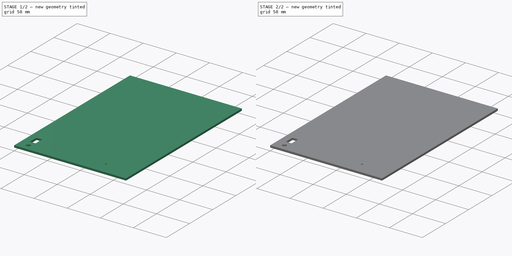
[diagram: build sequence overview — one tinted view per stage of 2, left to right]
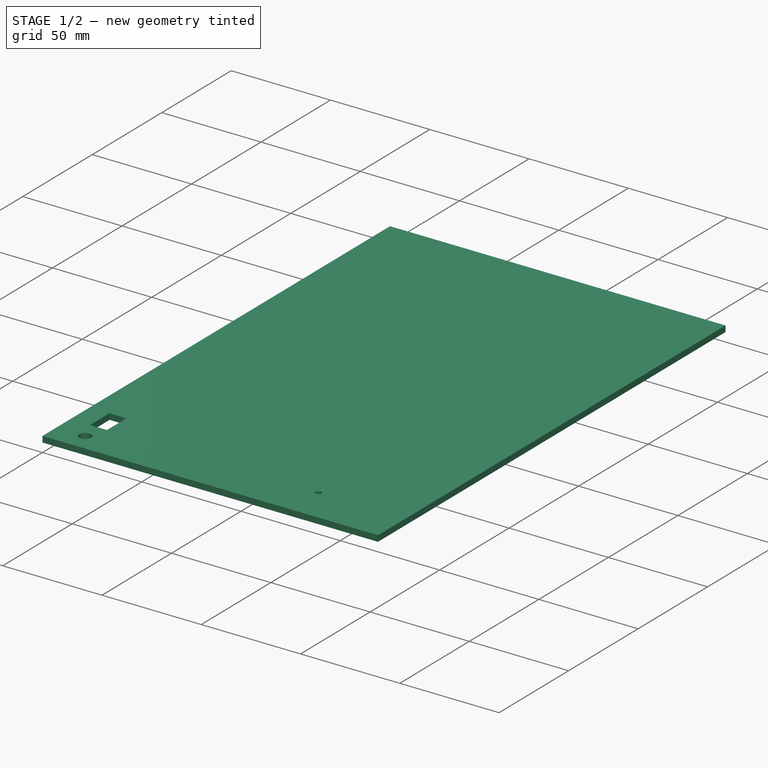
[diagram: stage 1 of 2 — iso view after this stage's code; geometry added in this stage tinted green]
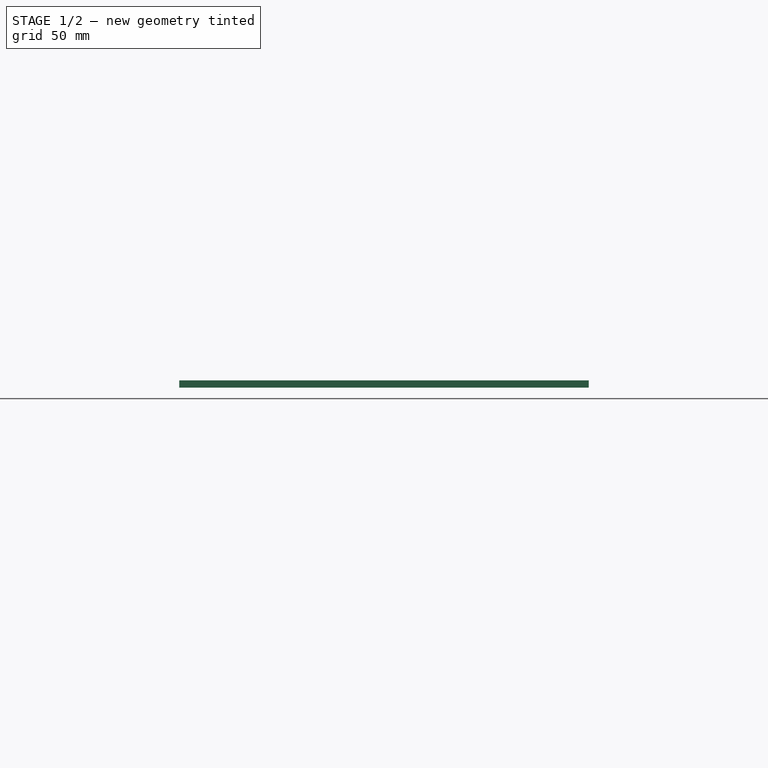
[diagram: stage 1 of 2 — front view after this stage's code; geometry added in this stage tinted green]
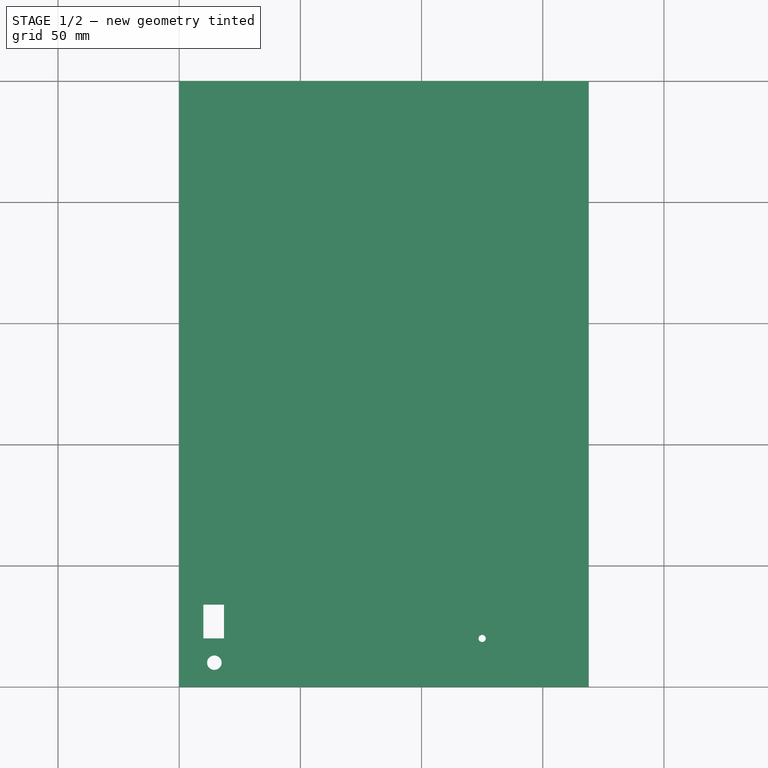
[diagram: stage 1 of 2 — top view after this stage's code; geometry added in this stage tinted green]
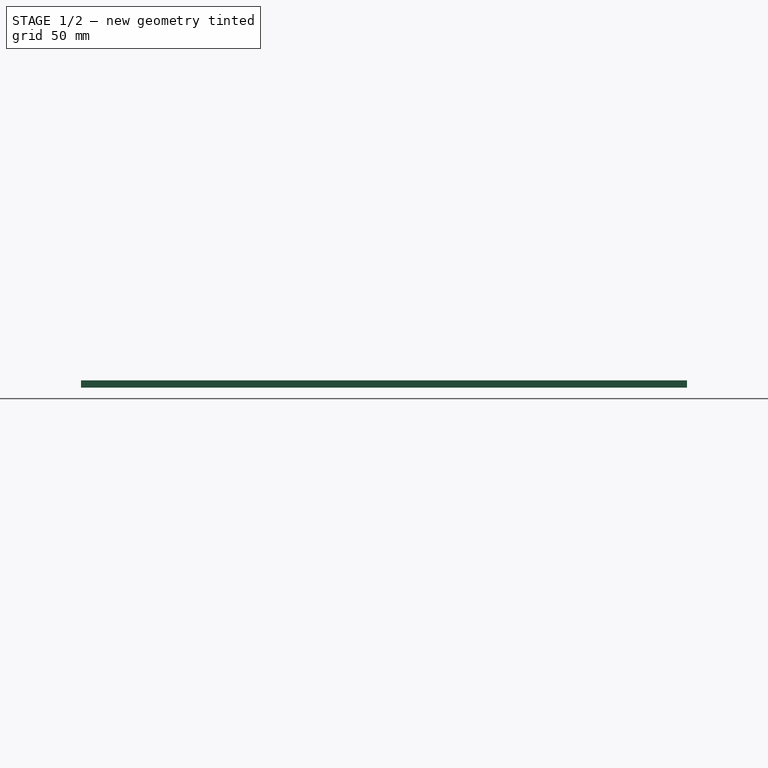
[diagram: stage 1 of 2 — right view after this stage's code; geometry added in this stage tinted green]
FCSTD DOCUMENT  (FreeCAD 0.17R13528 (Git))
Label: PlasticBack
License: All rights reserved
LicenseURL: http://en.wikipedia.org/wiki/All_rights_reserved
objects: Sketcher::SketchObject×2, PartDesign::Pad×1, PartDesign::Pocket×1, PartDesign::Body×1
note: 7 computed .brp shape members not serialized (recipe doc carries the construction recipe); baked Part::Feature solids carry a one-line shape summary decoded from their .brp

FEATURE [Sketcher::SketchObject] Sketch
  MapMode = 5
  Support = -> [XY_Plane]
  sketch-geometry (13):
    g0: LineSegment StartX=0 StartY=0 StartZ=0 EndX=169 EndY=0 EndZ=0
    g1: LineSegment StartX=169 StartY=0 StartZ=0 EndX=169 EndY=250 EndZ=0
    g2: LineSegment StartX=169 StartY=250 StartZ=0 EndX=0 EndY=250 EndZ=0
    g3: LineSegment StartX=0 StartY=250 StartZ=0 EndX=0 EndY=0 EndZ=0
    g4: LineSegment StartX=10 StartY=34 StartZ=0 EndX=18.5 EndY=34 EndZ=0
    g5: LineSegment StartX=18.5 StartY=34 StartZ=0 EndX=18.5 EndY=20 EndZ=0
    g6: LineSegment StartX=18.5 StartY=20 StartZ=0 EndX=10 EndY=20 EndZ=0
    g7: LineSegment StartX=10 StartY=20 StartZ=0 EndX=10 EndY=34 EndZ=0
    g8: Circle CenterX=14.5 CenterY=10 CenterZ=0 NormalX=0 NormalY=0 NormalZ=1 AngleXU=0 Radius=3
    g9: Circle CenterX=125 CenterY=20 CenterZ=0 NormalX=0 NormalY=0 NormalZ=1 AngleXU=0 Radius=1.5
    g10: LineSegment [constr] StartX=10 StartY=20 StartZ=0 EndX=10 EndY=0 EndZ=0
    g11: LineSegment [constr] StartX=14.5 StartY=10 StartZ=0 EndX=14.5 EndY=0 EndZ=0
    g12: LineSegment [constr] StartX=125 StartY=20 StartZ=0 EndX=125 EndY=0 EndZ=0
  constraints (38):
    c: Coincident(g0,g1)
    c: Coincident(g1,g2)
    c: Coincident(g2,g3)
    c: Coincident(g3,g0)
    c: Horizontal(g0)
    c: Horizontal(g2)
    c: Vertical(g1)
    c: Vertical(g3)
    c: Coincident(g0,g-1)
    c: DistanceX(g0,g0) = 169
    c: DistanceY(g3,g3) = 250
    c: Coincident(g4,g5)
    c: Coincident(g5,g6)
    c: Coincident(g6,g7)
    c: Coincident(g7,g4)
    c: Horizontal(g4)
    c: Horizontal(g6)
    c: Vertical(g5)
    c: Vertical(g7)
    c: DistanceX(g4,g4) = 8.5
    c: DistanceY(g5,g5) = 14
    c: Radius(g8) = 3
    c: Radius(g9) = 1.5
    c: Coincident(g10,g6)
    c: PointOnObject(g10,g0)
    c: Vertical(g10)
    c: Coincident(g11,g8)
    c: PointOnObject(g11,g0)
    c: Vertical(g11)
    c: Coincident(g12,g9)
    c: PointOnObject(g12,g0)
    c: Vertical(g12)
    c: DistanceY(g10,g10) = 20
    c: DistanceY(g11,g11) = 10
    c: Distance(g-1,g10) = 10
    c: Distance(g-1,g11) = 14.5
    c: DistanceY(g12,g12) = 20
    c: Distance(g-1,g12) = 125
FEATURE [PartDesign::Pad] Pad
  Length = 3
  Length2 = 100
  Profile = -> Sketch
  Type = 0
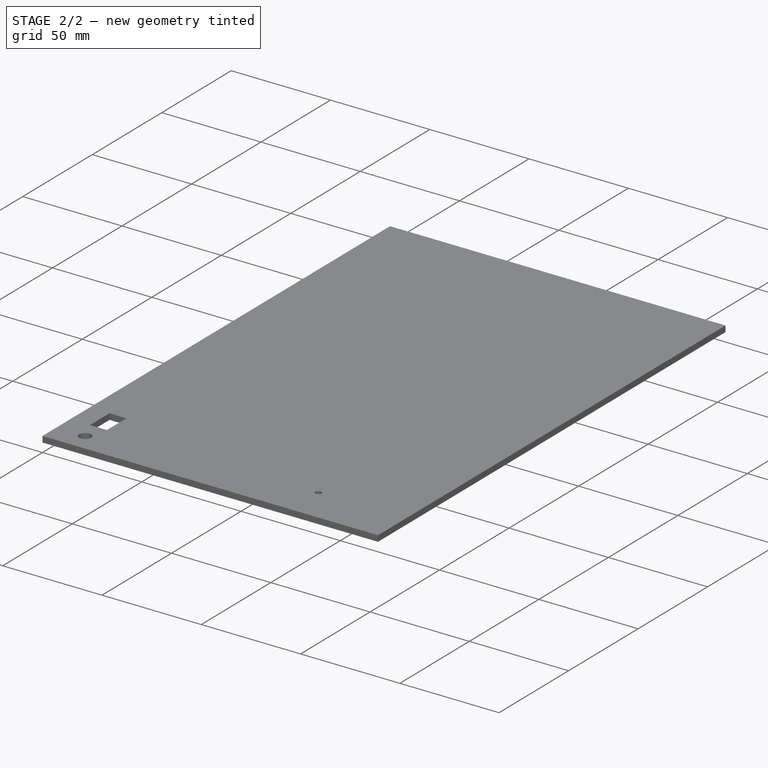
[diagram: stage 2 of 2 — iso view after this stage's code; geometry added in this stage tinted green]
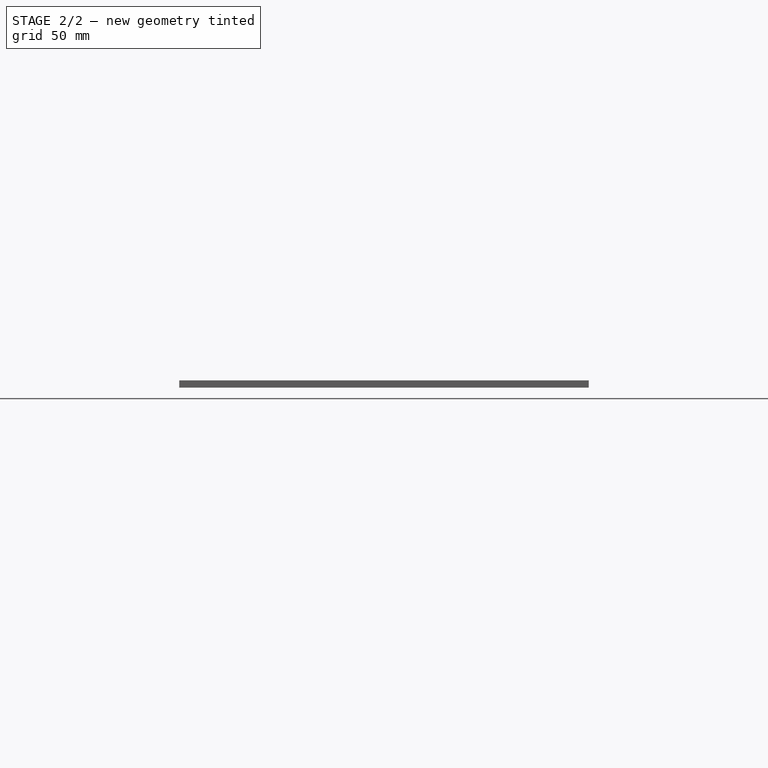
[diagram: stage 2 of 2 — front view after this stage's code; geometry added in this stage tinted green]
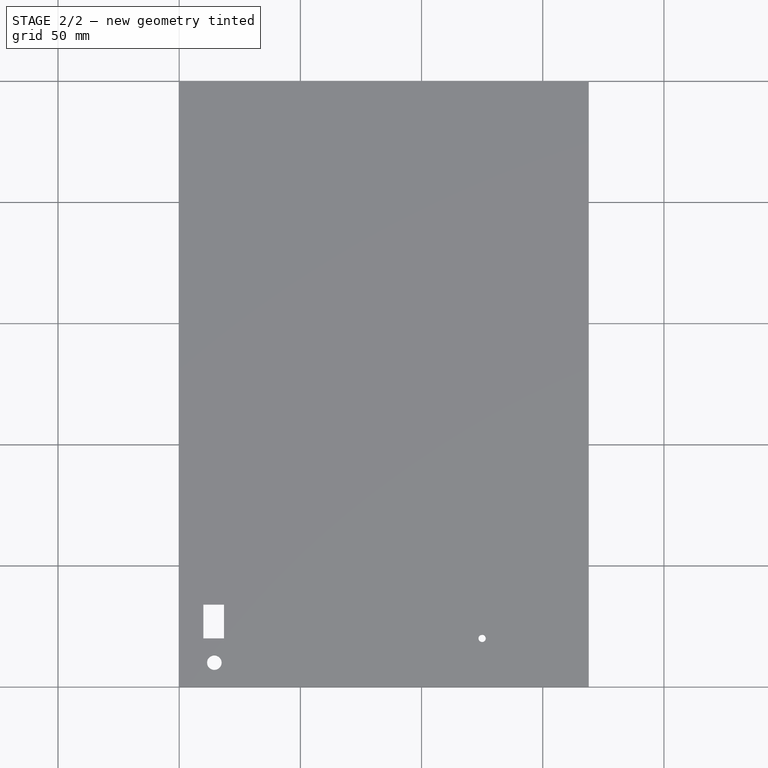
[diagram: stage 2 of 2 — top view after this stage's code; geometry added in this stage tinted green]
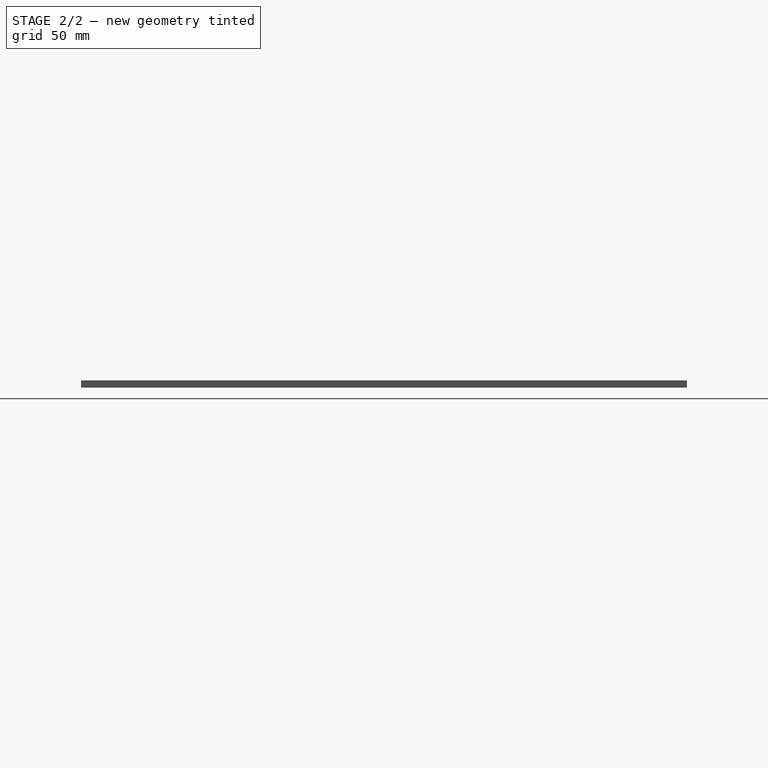
[diagram: stage 2 of 2 — right view after this stage's code; geometry added in this stage tinted green]
FEATURE [Sketcher::SketchObject] Sketch001
  ExternalGeometry = -> [Pad]
  MapMode = 5
  Support = -> [XY_Plane]
  sketch-geometry (5):
    g0: LineSegment StartX=122 StartY=23 StartZ=0 EndX=128 EndY=23 EndZ=0
    g1: LineSegment StartX=128 StartY=23 StartZ=0 EndX=128 EndY=17 EndZ=0
    g2: LineSegment StartX=128 StartY=17 StartZ=0 EndX=122 EndY=17 EndZ=0
    g3: LineSegment StartX=122 StartY=17 StartZ=0 EndX=122 EndY=23 EndZ=0
    g4: LineSegment [constr] StartX=125 StartY=20 StartZ=0 EndX=125 EndY=23 EndZ=0
  constraints (15):
    c: Coincident(g0,g1)
    c: Coincident(g1,g2)
    c: Coincident(g2,g3)
    c: Coincident(g3,g0)
    c: Horizontal(g0)
    c: Horizontal(g2)
    c: Vertical(g1)
    c: Vertical(g3)
    c: DistanceX(g2,g2) = 6
    c: DistanceY(g3,g3) = 6
    c: Coincident(g4,g-3)
    c: PointOnObject(g4,g0)
    c: Vertical(g4)
    c: DistanceY(g4,g4) = 3
    c: Distance(g0,g4) = 3
FEATURE [PartDesign::Pocket] Pocket
  BaseFeature = -> Pad
  Length = 1
  Length2 = 100
  Profile = -> Sketch001
  Reversed = true
  Type = 0
FEATURE [PartDesign::Body] Body
  Group = -> [Sketch,Pad,Sketch001,Pocket]
  Origin = -> Origin
  Tip = -> Pocket
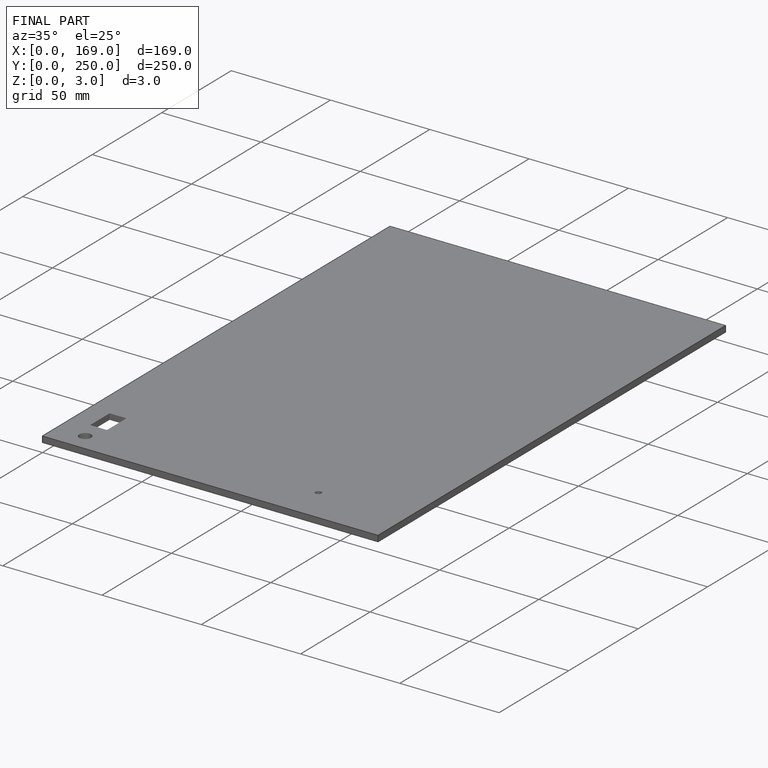
[diagram: finished part — iso view with bounding-box wireframe]
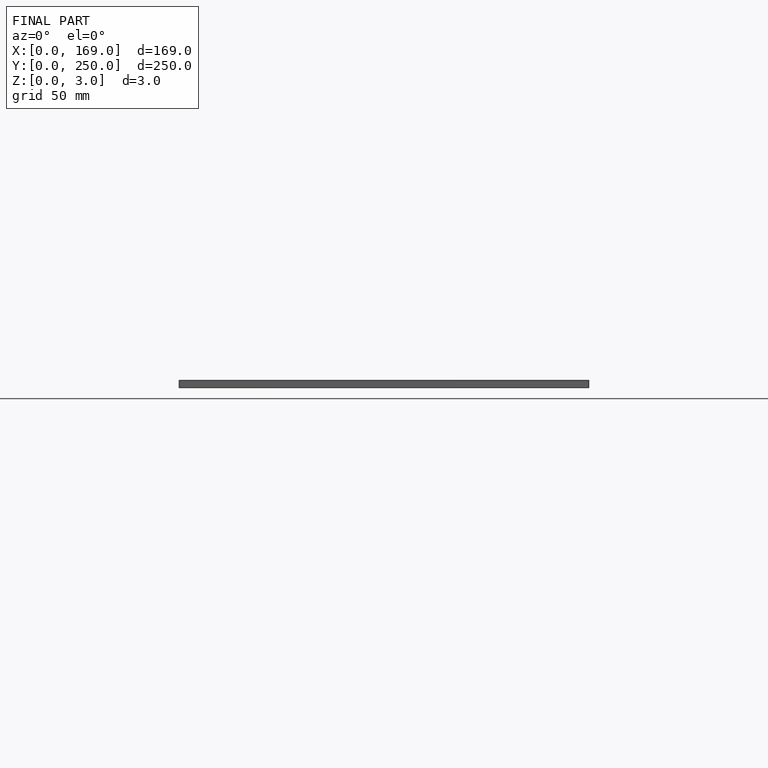
[diagram: finished part — front view with bounding-box wireframe]
